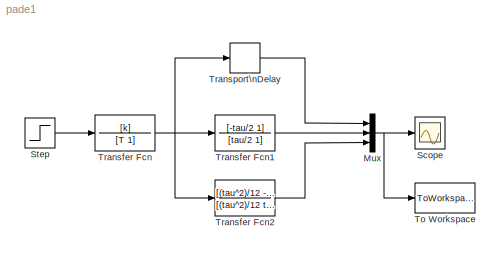
MODEL pade1
KIND model
BLOCK [Mux] Mux
  DisplayOption = bar
  Inputs = 3
  Ports = [3, 1]
  SID = 6
BLOCK [Scope] Scope
  DataFormat = StructureWithTime
  Floating = off
  NumInputPorts = 1
  Ports = [1]
  SID = 7
  SampleTime = 0
  ShowLegends = off
BLOCK [Step] Step
  SID = 2
  SampleTime = 0
  Time = 0
BLOCK [ToWorkspace] To Workspace
  MaxDataPoints = inf
  Ports = [1]
  SID = 8
  SampleTime = -1
  VariableName = pade1
BLOCK [TransferFcn] Transfer Fcn
  Denominator = [T 1]
  Numerator = [k]
  SID = 1
BLOCK [TransferFcn] Transfer Fcn1
  Denominator = [tau/2 1]
  Numerator = [-tau/2 1]
  SID = 4
BLOCK [TransferFcn] Transfer Fcn2
  Denominator = [(tau^2)/12 tau/2 1]
  Numerator = [(tau^2)/12 -tau/2 1]
  SID = 5
BLOCK [TransportDelay] Transport\nDelay
  DelayTime = tau
  Ports = [1, 1]
  SID = 3
NET Mux:1 -> Scope:1, To Workspace:1
LINE Step:1 -> Transfer Fcn:1
LINE Transfer Fcn1:1 -> Mux:2
LINE Transfer Fcn2:1 -> Mux:3
NET Transfer Fcn:1 -> Transfer Fcn1:1, Transfer Fcn2:1, Transport\nDelay:1
LINE Transport\nDelay:1 -> Mux:1
note: NET lines group one-source signal fan-out (src -> all destinations, sorted); 1:1 wires keep LINE
